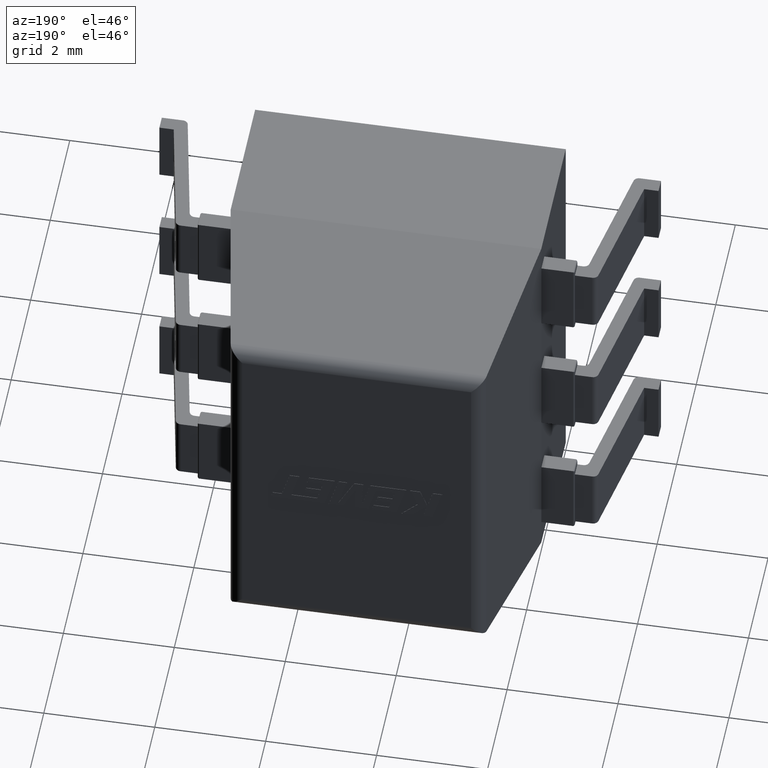
[diagram: clean part render]
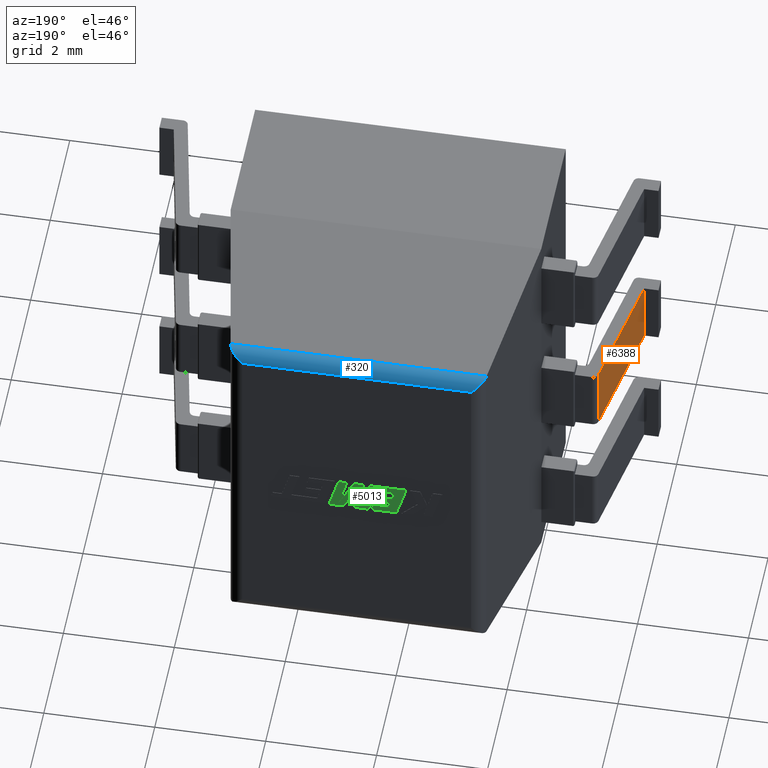
[diagram: same view with three faces highlighted in distinct colors, each labeled with its STEP entity id]
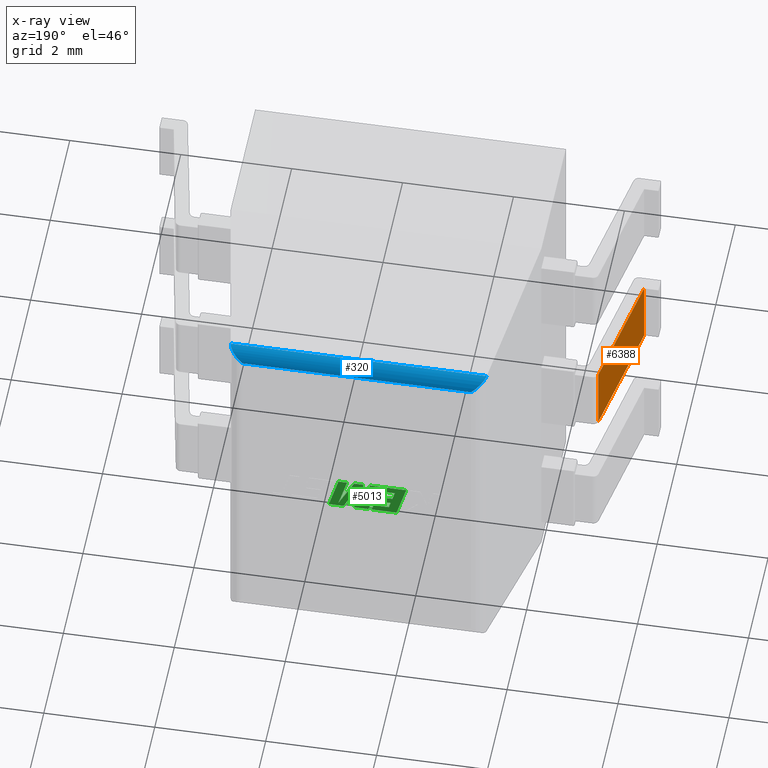
[diagram: x-ray of the same camera — body ghosted, the three highlighted faces saturated]
A machine part, auxiliary view with three faces highlighted in distinct colors.
The next image is the same camera in x-ray (body ghosted, the three faces saturated) — at least one of them is partly hidden behind the body in this view.
Their STEP definitions:

[orange] entity #6388 — the highlighted planar face has unit normal (-0.9819, 0.1894, 0).
#21 = ORIENTED_EDGE ( 'NONE', *, *, #768, .T. ) ;
#187 = CARTESIAN_POINT ( 'NONE',  ( -1.440915913729586800, 0.1499999999999997200, -3.149999999999999500 ) ) ;
#768 = EDGE_CURVE ( 'NONE', #2893, #1430, #2916, .T. ) ;
#974 = VECTOR ( 'NONE', #1299, 1000.000000000000000 ) ;
#1021 = EDGE_CURVE ( 'NONE', #6964, #2893, #2041, .T. ) ;
#1105 = VECTOR ( 'NONE', #4920, 999.9999999999998900 ) ;
#1299 = DIRECTION ( 'NONE',  ( 0.0000000000000000000, 0.0000000000000000000, 1.000000000000000000 ) ) ;
#1430 = VERTEX_POINT ( 'NONE', #3330 ) ;
#1866 = EDGE_LOOP ( 'NONE', ( #5034, #6144, #8525, #21 ) ) ;
#2041 = LINE ( 'NONE', #7977, #974 ) ;
#2200 = CARTESIAN_POINT ( 'NONE',  ( -1.440915913729586800, 0.1499999999999997200, -4.349999999999999600 ) ) ;
#2653 = VERTEX_POINT ( 'NONE', #6819 ) ;
#2776 = EDGE_CURVE ( 'NONE', #6964, #2653, #6210, .T. ) ;
#2893 = VERTEX_POINT ( 'NONE', #5776 ) ;
#2916 = LINE ( 'NONE', #187, #1105 ) ;
#2958 = CARTESIAN_POINT ( 'NONE',  ( -1.440915913729586800, 0.1499999999999997200, -4.349999999999999600 ) ) ;
#3330 = CARTESIAN_POINT ( 'NONE',  ( -1.010126714420510600, 2.383935020691321200, -3.149999999999999500 ) ) ;
#3573 = VECTOR ( 'NONE', #5081, 1000.000000000000000 ) ;
#4038 = PLANE ( 'NONE',  #4569 ) ;
#4212 = VECTOR ( 'NONE', #5644, 999.9999999999998900 ) ;
#4402 = CARTESIAN_POINT ( 'NONE',  ( -1.010126714420510600, 2.383935020691321200, -4.349999999999999600 ) ) ;
#4569 = AXIS2_PLACEMENT_3D ( 'NONE', #2200, #6918, #7551 ) ;
#4920 = DIRECTION ( 'NONE',  ( 0.1893502069138052500, 0.9819096186216423900, 0.0000000000000000000 ) ) ;
#5034 = ORIENTED_EDGE ( 'NONE', *, *, #7256, .F. ) ;
#5081 = DIRECTION ( 'NONE',  ( 0.0000000000000000000, 0.0000000000000000000, 1.000000000000000000 ) ) ;
#5363 = LINE ( 'NONE', #4402, #3573 ) ;
#5644 = DIRECTION ( 'NONE',  ( 0.1893502069138052500, 0.9819096186216423900, 0.0000000000000000000 ) ) ;
#5700 = CARTESIAN_POINT ( 'NONE',  ( -1.440915913729586800, 0.1499999999999997200, -4.349999999999999600 ) ) ;
#5776 = CARTESIAN_POINT ( 'NONE',  ( -1.440915913729586800, 0.1499999999999997200, -3.149999999999999500 ) ) ;
#6144 = ORIENTED_EDGE ( 'NONE', *, *, #2776, .F. ) ;
#6210 = LINE ( 'NONE', #5700, #4212 ) ;
#6388 = ADVANCED_FACE ( 'NONE', ( #8397 ), #4038, .T. ) ;
#6819 = CARTESIAN_POINT ( 'NONE',  ( -1.010126714420510600, 2.383935020691321200, -4.349999999999999600 ) ) ;
#6918 = DIRECTION ( 'NONE',  ( -0.9819096186216423900, 0.1893502069138053000, 0.0000000000000000000 ) ) ;
#6964 = VERTEX_POINT ( 'NONE', #2958 ) ;
#7256 = EDGE_CURVE ( 'NONE', #2653, #1430, #5363, .T. ) ;
#7551 = DIRECTION ( 'NONE',  ( 0.1893502069138053000, 0.9819096186216423900, 0.0000000000000000000 ) ) ;
#7977 = CARTESIAN_POINT ( 'NONE',  ( -1.440915913729586800, 0.1499999999999997200, -4.349999999999999600 ) ) ;
#8397 = FACE_OUTER_BOUND ( 'NONE', #1866, .T. ) ;
#8525 = ORIENTED_EDGE ( 'NONE', *, *, #1021, .T. ) ;

[blue] entity #320 — the highlighted cylindrical surface (edge-blend (fillet) strip) has radius 0.25 mm, axis along (1, 0, 0).
#59 = CARTESIAN_POINT ( 'NONE',  ( 0.5145947842552223200, 5.418412044416731600, -0.5145947842552225400 ) ) ;
#320 = ADVANCED_FACE ( 'NONE', ( #5987 ), #8481, .T. ) ;
#877 = AXIS2_PLACEMENT_3D ( 'NONE', #5359, #3356, #5497 ) ;
#1311 = CARTESIAN_POINT ( 'NONE',  ( 0.6118275234339978200, 5.499999999999999100, -0.6118275234339982700 ) ) ;
#1354 = CARTESIAN_POINT ( 'NONE',  ( 4.988172476566000500, 5.499999999999999100, -0.6118275234339978200 ) ) ;
#1385 = CARTESIAN_POINT ( 'NONE',  ( 5.107446088333335700, 5.293412044416731600, -0.4925539116666643500 ) ) ;
#1480 = ORIENTED_EDGE ( 'NONE', *, *, #3607, .F. ) ;
#1493 = CARTESIAN_POINT ( 'NONE',  ( 0.5289809421253955900, 5.293412044416731600, -0.4925539116666643500 ) ) ;
#2100 = VERTEX_POINT ( 'NONE', #2774 ) ;
#2345 = VECTOR ( 'NONE', #2942, 1000.000000000000000 ) ;
#2718 = CARTESIAN_POINT ( 'NONE',  ( 0.7387558499197165500, 5.500000000000000000, -0.7387558499197165500 ) ) ;
#2774 = CARTESIAN_POINT ( 'NONE',  ( 4.861244150080283400, 5.500000000000000000, -0.7387558499197165500 ) ) ;
#2942 = DIRECTION ( 'NONE',  ( 1.000000000000000000, -0.0000000000000000000, -0.0000000000000000000 ) ) ;
#3187 = EDGE_CURVE ( 'NONE', #3764, #6053, #5107, .T. ) ;
#3356 = DIRECTION ( 'NONE',  ( 1.000000000000000000, 0.0000000000000000000, 0.0000000000000000000 ) ) ;
#3607 = EDGE_CURVE ( 'NONE', #6047, #6053, #6599, .T. ) ;
#3764 = VERTEX_POINT ( 'NONE', #5733 ) ;
#4026 = CARTESIAN_POINT ( 'NONE',  ( 5.071019057874602600, 5.500000000000000000, -0.7387558499197165500 ) ) ;
#4119 =( BOUNDED_CURVE ( )  B_SPLINE_CURVE ( 3, ( #1385, #7485, #1354, #7434 ),
 .UNSPECIFIED., .F., .T. ) 
 B_SPLINE_CURVE_WITH_KNOTS ( ( 4, 4 ),
 ( 3.316125578789223600, 4.712388980384688800 ),
 .UNSPECIFIED. ) 
 CURVE ( )  GEOMETRIC_REPRESENTATION_ITEM ( )  RATIONAL_B_SPLINE_CURVE ( ( 1.000000000000000000, 0.8440296287459849700, 0.8440296287459849700, 1.000000000000000000 ) ) 
 REPRESENTATION_ITEM ( '' )  );
#4134 = LINE ( 'NONE', #4026, #2345 ) ;
#4807 = VECTOR ( 'NONE', #6228, 1000.000000000000000 ) ;
#4941 = ORIENTED_EDGE ( 'NONE', *, *, #3187, .T. ) ;
#5100 = EDGE_CURVE ( 'NONE', #3764, #2100, #4134, .T. ) ;
#5107 =( BOUNDED_CURVE ( )  B_SPLINE_CURVE ( 3, ( #2718, #1311, #59, #8107 ),
 .UNSPECIFIED., .F., .F. ) 
 B_SPLINE_CURVE_WITH_KNOTS ( ( 4, 4 ),
 ( 4.712388980384689700, 6.108652381980155300 ),
 .UNSPECIFIED. ) 
 CURVE ( )  GEOMETRIC_REPRESENTATION_ITEM ( )  RATIONAL_B_SPLINE_CURVE ( ( 1.000000000000000000, 0.8440296287459849700, 0.8440296287459849700, 1.000000000000000000 ) ) 
 REPRESENTATION_ITEM ( '' )  );
#5359 = CARTESIAN_POINT ( 'NONE',  ( 0.0000000000000000000, 5.249999999999999100, -0.7387558499197165500 ) ) ;
#5497 = DIRECTION ( 'NONE',  ( 0.0000000000000000000, 0.0000000000000000000, -1.000000000000000000 ) ) ;
#5733 = CARTESIAN_POINT ( 'NONE',  ( 0.7387558499197165500, 5.500000000000000000, -0.7387558499197165500 ) ) ;
#5987 = FACE_OUTER_BOUND ( 'NONE', #7882, .T. ) ;
#6047 = VERTEX_POINT ( 'NONE', #6392 ) ;
#6053 = VERTEX_POINT ( 'NONE', #6332 ) ;
#6070 = ORIENTED_EDGE ( 'NONE', *, *, #7819, .T. ) ;
#6228 = DIRECTION ( 'NONE',  ( -1.000000000000000000, -0.0000000000000000000, -0.0000000000000000000 ) ) ;
#6332 = CARTESIAN_POINT ( 'NONE',  ( 0.4925539116666644000, 5.293412044416731600, -0.4925539116666644000 ) ) ;
#6392 = CARTESIAN_POINT ( 'NONE',  ( 5.107446088333335700, 5.293412044416731600, -0.4925539116666643500 ) ) ;
#6599 = LINE ( 'NONE', #1493, #4807 ) ;
#7163 = ORIENTED_EDGE ( 'NONE', *, *, #5100, .F. ) ;
#7434 = CARTESIAN_POINT ( 'NONE',  ( 4.861244150080283400, 5.500000000000000000, -0.7387558499197165500 ) ) ;
#7485 = CARTESIAN_POINT ( 'NONE',  ( 5.085405215744776400, 5.418412044416731600, -0.5145947842552224300 ) ) ;
#7819 = EDGE_CURVE ( 'NONE', #6047, #2100, #4119, .T. ) ;
#7882 = EDGE_LOOP ( 'NONE', ( #4941, #1480, #6070, #7163 ) ) ;
#8107 = CARTESIAN_POINT ( 'NONE',  ( 0.4925539116666644000, 5.293412044416731600, -0.4925539116666644000 ) ) ;
#8481 = CYLINDRICAL_SURFACE ( 'NONE', #877, 0.2500000000000001100 ) ;

[green] entity #5013 — the highlighted planar face has unit normal (0, -1, -0).
#4 = LINE ( 'NONE', #1093, #6965 ) ;
#100 = DIRECTION ( 'NONE',  ( -0.2760118818968504400, 0.0000000000000000000, 0.9611542233438705700 ) ) ;
#143 = CARTESIAN_POINT ( 'NONE',  ( 3.126770608996741500, 5.504999999999999900, -3.447353490482363700 ) ) ;
#229 = ORIENTED_EDGE ( 'NONE', *, *, #4556, .T. ) ;
#251 = DIRECTION ( 'NONE',  ( 0.05375259206908306700, 0.0000000000000000000, -0.9985542843760947300 ) ) ;
#356 = EDGE_CURVE ( 'NONE', #3122, #2538, #1018, .T. ) ;
#372 = CARTESIAN_POINT ( 'NONE',  ( 2.681567917805442600, 5.504999999999999900, -3.447353490482364200 ) ) ;
#466 = ORIENTED_EDGE ( 'NONE', *, *, #5731, .T. ) ;
#549 = CARTESIAN_POINT ( 'NONE',  ( 2.526423671517495300, 5.504999999999999900, -4.052198855735402300 ) ) ;
#556 = ORIENTED_EDGE ( 'NONE', *, *, #356, .T. ) ;
#576 = DIRECTION ( 'NONE',  ( -1.000000000000000000, 0.0000000000000000000, 0.0000000000000000000 ) ) ;
#609 = VERTEX_POINT ( 'NONE', #7802 ) ;
#627 = LINE ( 'NONE', #8684, #3505 ) ;
#649 = VECTOR ( 'NONE', #3512, 1000.000000000000000 ) ;
#734 = EDGE_CURVE ( 'NONE', #6391, #3682, #1738, .T. ) ;
#781 = CARTESIAN_POINT ( 'NONE',  ( 2.110681449141495100, 5.504999999999999900, -3.562425688122239800 ) ) ;
#793 = EDGE_CURVE ( 'NONE', #4226, #6873, #995, .T. ) ;
#976 = DIRECTION ( 'NONE',  ( 1.000000000000000000, 0.0000000000000000000, 0.0000000000000000000 ) ) ;
#990 = CARTESIAN_POINT ( 'NONE',  ( 1.905534037723799300, 5.504999999999999900, -3.447353490482364200 ) ) ;
#995 = LINE ( 'NONE', #4326, #6390 ) ;
#1006 = EDGE_CURVE ( 'NONE', #4124, #3122, #6799, .T. ) ;
#1018 = LINE ( 'NONE', #3479, #4418 ) ;
#1039 = CARTESIAN_POINT ( 'NONE',  ( 2.821074975420974500, 5.504999999999999900, -3.620089555489130800 ) ) ;
#1081 = CARTESIAN_POINT ( 'NONE',  ( 2.821074975420974500, 5.504999999999999900, -3.620089555489130800 ) ) ;
#1093 = CARTESIAN_POINT ( 'NONE',  ( 2.586753356212198300, 5.504999999999999900, -4.052198855735402300 ) ) ;
#1095 = VECTOR ( 'NONE', #4133, 1000.000000000000000 ) ;
#1138 = VERTEX_POINT ( 'NONE', #2707 ) ;
#1246 = CARTESIAN_POINT ( 'NONE',  ( 2.079584185442108400, 5.504999999999999900, -4.052198855735402300 ) ) ;
#1276 = ORIENTED_EDGE ( 'NONE', *, *, #4314, .T. ) ;
#1405 = VERTEX_POINT ( 'NONE', #1931 ) ;
#1429 = DIRECTION ( 'NONE',  ( 0.2746459304916960000, 0.0000000000000000000, -0.9615454294334462300 ) ) ;
#1459 = VERTEX_POINT ( 'NONE', #8004 ) ;
#1540 = CARTESIAN_POINT ( 'NONE',  ( 2.842814283034615500, 5.504999999999999900, -3.447353490482364200 ) ) ;
#1561 = LINE ( 'NONE', #5426, #3183 ) ;
#1591 = VERTEX_POINT ( 'NONE', #1540 ) ;
#1732 = VERTEX_POINT ( 'NONE', #3741 ) ;
#1738 = LINE ( 'NONE', #8237, #3757 ) ;
#1753 = EDGE_CURVE ( 'NONE', #4431, #4124, #6985, .T. ) ;
#1766 = EDGE_CURVE ( 'NONE', #6873, #7880, #6773, .T. ) ;
#1780 = EDGE_CURVE ( 'NONE', #1459, #1591, #4656, .T. ) ;
#1791 = ORIENTED_EDGE ( 'NONE', *, *, #2047, .T. ) ;
#1931 = CARTESIAN_POINT ( 'NONE',  ( 2.711751151106718300, 5.504999999999999900, -3.985831420924078800 ) ) ;
#1942 = DIRECTION ( 'NONE',  ( 0.2763139702539097500, 0.0000000000000000000, -0.9610674221107077300 ) ) ;
#2047 = EDGE_CURVE ( 'NONE', #4838, #4226, #8504, .T. ) ;
#2089 = EDGE_CURVE ( 'NONE', #6865, #4431, #1561, .T. ) ;
#2159 = ORIENTED_EDGE ( 'NONE', *, *, #3592, .T. ) ;
#2160 = ORIENTED_EDGE ( 'NONE', *, *, #1780, .T. ) ;
#2173 = CARTESIAN_POINT ( 'NONE',  ( 2.413083901719929300, 5.504999999999999900, -3.712753344107350400 ) ) ;
#2246 = LINE ( 'NONE', #1246, #4258 ) ;
#2266 = VERTEX_POINT ( 'NONE', #3597 ) ;
#2349 = EDGE_CURVE ( 'NONE', #609, #1138, #4, .T. ) ;
#2363 = VECTOR ( 'NONE', #4621, 1000.000000000000200 ) ;
#2410 = DIRECTION ( 'NONE',  ( -0.2762517575166264500, 0.0000000000000000000, 0.9610853065513878000 ) ) ;
#2441 = CARTESIAN_POINT ( 'NONE',  ( 2.153513980435636000, 5.504999999999999900, -3.712753344107350400 ) ) ;
#2460 = ORIENTED_EDGE ( 'NONE', *, *, #2349, .T. ) ;
#2538 = VERTEX_POINT ( 'NONE', #8703 ) ;
#2707 = CARTESIAN_POINT ( 'NONE',  ( 2.445974283412600600, 5.504999999999999900, -3.562425688122239800 ) ) ;
#2730 = VECTOR ( 'NONE', #8334, 1000.000000000000000 ) ;
#2791 = VECTOR ( 'NONE', #576, 1000.000000000000000 ) ;
#2815 = ORIENTED_EDGE ( 'NONE', *, *, #2089, .T. ) ;
#2852 = ORIENTED_EDGE ( 'NONE', *, *, #4033, .T. ) ;
#2977 = VERTEX_POINT ( 'NONE', #1081 ) ;
#3014 = VECTOR ( 'NONE', #1942, 1000.000000000000100 ) ;
#3035 = CARTESIAN_POINT ( 'NONE',  ( 2.079584185442108400, 5.504999999999999900, -4.052198855735402300 ) ) ;
#3122 = VERTEX_POINT ( 'NONE', #5232 ) ;
#3183 = VECTOR ( 'NONE', #100, 1000.000000000000200 ) ;
#3479 = CARTESIAN_POINT ( 'NONE',  ( 3.300668111313172800, 5.504999999999999900, -4.052198855735402300 ) ) ;
#3505 = VECTOR ( 'NONE', #8054, 1000.000000000000000 ) ;
#3510 = DIRECTION ( 'NONE',  ( 0.2793947940877490300, 0.0000000000000000000, -0.9601763114327829300 ) ) ;
#3512 = DIRECTION ( 'NONE',  ( -1.000000000000000000, 0.0000000000000000000, 0.0000000000000000000 ) ) ;
#3518 = VERTEX_POINT ( 'NONE', #2441 ) ;
#3592 = EDGE_CURVE ( 'NONE', #1732, #609, #5858, .T. ) ;
#3597 = CARTESIAN_POINT ( 'NONE',  ( 2.557138402896487900, 5.504999999999999900, -3.447353490482364200 ) ) ;
#3682 = VERTEX_POINT ( 'NONE', #5584 ) ;
#3715 = VERTEX_POINT ( 'NONE', #3035 ) ;
#3741 = CARTESIAN_POINT ( 'NONE',  ( 2.844335598612739400, 5.504999999999999900, -4.052198855735402300 ) ) ;
#3757 = VECTOR ( 'NONE', #1429, 1000.000000000000000 ) ;
#3939 = VECTOR ( 'NONE', #5134, 1000.000000000000100 ) ;
#3974 = DIRECTION ( 'NONE',  ( -0.2765379750249943900, 0.0000000000000000000, 0.9610029908221282600 ) ) ;
#4007 = VECTOR ( 'NONE', #3510, 999.9999999999998900 ) ;
#4012 = CARTESIAN_POINT ( 'NONE',  ( 2.493724555742055300, 5.504999999999999900, -3.937069646140000300 ) ) ;
#4033 = EDGE_CURVE ( 'NONE', #1138, #5342, #5651, .T. ) ;
#4124 = VERTEX_POINT ( 'NONE', #143 ) ;
#4133 = DIRECTION ( 'NONE',  ( -1.000000000000000000, 0.0000000000000000000, 0.0000000000000000000 ) ) ;
#4226 = VERTEX_POINT ( 'NONE', #5695 ) ;
#4258 = VECTOR ( 'NONE', #3974, 1000.000000000000100 ) ;
#4314 = EDGE_CURVE ( 'NONE', #2538, #2977, #6052, .T. ) ;
#4326 = CARTESIAN_POINT ( 'NONE',  ( 2.218150826501031700, 5.504999999999999900, -3.937069646140000300 ) ) ;
#4334 = CARTESIAN_POINT ( 'NONE',  ( 2.844335598612739400, 5.504999999999999900, -4.052198855735402300 ) ) ;
#4369 = CARTESIAN_POINT ( 'NONE',  ( 2.973070052092867200, 5.504999999999999900, -3.447353490482363700 ) ) ;
#4399 = DIRECTION ( 'NONE',  ( 0.2732148821746249200, 0.0000000000000000000, -0.9619530280415492500 ) ) ;
#4418 = VECTOR ( 'NONE', #4824, 1000.000000000000000 ) ;
#4430 = ORIENTED_EDGE ( 'NONE', *, *, #4501, .T. ) ;
#4431 = VERTEX_POINT ( 'NONE', #5225 ) ;
#4501 = EDGE_CURVE ( 'NONE', #1405, #1459, #6149, .T. ) ;
#4502 = EDGE_CURVE ( 'NONE', #7880, #3715, #7103, .T. ) ;
#4556 = EDGE_CURVE ( 'NONE', #3715, #7007, #2246, .T. ) ;
#4599 = EDGE_CURVE ( 'NONE', #2266, #1405, #6570, .T. ) ;
#4620 = EDGE_CURVE ( 'NONE', #3682, #4838, #7703, .T. ) ;
#4621 = DIRECTION ( 'NONE',  ( -0.05596501978068196800, 0.0000000000000000000, 0.9984327301130245800 ) ) ;
#4644 = DIRECTION ( 'NONE',  ( 0.0000000000000000000, 0.0000000000000000000, -1.000000000000000000 ) ) ;
#4656 = LINE ( 'NONE', #372, #8635 ) ;
#4824 = DIRECTION ( 'NONE',  ( -1.000000000000000000, 0.0000000000000000000, 0.0000000000000000000 ) ) ;
#4831 = CARTESIAN_POINT ( 'NONE',  ( 2.110681449141495100, 5.504999999999999900, -3.562425688122239800 ) ) ;
#4838 = VERTEX_POINT ( 'NONE', #8704 ) ;
#4972 = ORIENTED_EDGE ( 'NONE', *, *, #4620, .T. ) ;
#5013 = ADVANCED_FACE ( 'NONE', ( #5611 ), #8622, .F. ) ;
#5026 = CARTESIAN_POINT ( 'NONE',  ( 1.905534037723799300, 5.504999999999999900, -3.447353490482364200 ) ) ;
#5134 = DIRECTION ( 'NONE',  ( -0.4443210308329174600, 0.0000000000000000000, 0.8958676361826971600 ) ) ;
#5225 = CARTESIAN_POINT ( 'NONE',  ( 2.973070052092867200, 5.504999999999999900, -3.447353490482363700 ) ) ;
#5232 = CARTESIAN_POINT ( 'NONE',  ( 3.300668111313172800, 5.504999999999999900, -4.052198855735402300 ) ) ;
#5284 = VECTOR ( 'NONE', #5369, 1000.000000000000100 ) ;
#5307 = CARTESIAN_POINT ( 'NONE',  ( 0.0000000000000000000, 5.504999999999998100, 0.0000000000000000000 ) ) ;
#5309 = LINE ( 'NONE', #1039, #7599 ) ;
#5342 = VERTEX_POINT ( 'NONE', #781 ) ;
#5369 = DIRECTION ( 'NONE',  ( 0.2740217765954041100, 0.0000000000000000000, -0.9617234872620604700 ) ) ;
#5373 = CARTESIAN_POINT ( 'NONE',  ( 2.842814283034615500, 5.504999999999999900, -3.447353490482364200 ) ) ;
#5426 = CARTESIAN_POINT ( 'NONE',  ( 3.128447863979044700, 5.504999999999999900, -3.988424545402167200 ) ) ;
#5505 = DIRECTION ( 'NONE',  ( 0.2759782365590813800, 0.0000000000000000000, -0.9611638845408933000 ) ) ;
#5584 = CARTESIAN_POINT ( 'NONE',  ( 2.445021632009909400, 5.504999999999999900, -3.824568503836204900 ) ) ;
#5585 = CARTESIAN_POINT ( 'NONE',  ( 2.526423671517495300, 5.504999999999999900, -4.052198855735402300 ) ) ;
#5611 = FACE_OUTER_BOUND ( 'NONE', #5818, .T. ) ;
#5627 = AXIS2_PLACEMENT_3D ( 'NONE', #5307, #6650, #4644 ) ;
#5651 = LINE ( 'NONE', #8053, #1095 ) ;
#5695 = CARTESIAN_POINT ( 'NONE',  ( 2.218150826501031700, 5.504999999999999900, -3.937069646140000300 ) ) ;
#5731 = EDGE_CURVE ( 'NONE', #1591, #6865, #7104, .T. ) ;
#5818 = EDGE_LOOP ( 'NONE', ( #556, #1276, #6782, #2159, #2460, #2852, #6673, #7222, #7837, #4972, #1791, #6034, #5841, #6125, #229, #6746, #7907, #4430, #2160, #466, #2815, #6276, #6813 ) ) ;
#5841 = ORIENTED_EDGE ( 'NONE', *, *, #1766, .T. ) ;
#5858 = LINE ( 'NONE', #4334, #8575 ) ;
#6003 = CARTESIAN_POINT ( 'NONE',  ( 2.185414928818134200, 5.504999999999999900, -3.824568503836204900 ) ) ;
#6004 = EDGE_CURVE ( 'NONE', #2977, #1732, #5309, .T. ) ;
#6034 = ORIENTED_EDGE ( 'NONE', *, *, #793, .T. ) ;
#6052 = LINE ( 'NONE', #7166, #3939 ) ;
#6093 = CARTESIAN_POINT ( 'NONE',  ( 2.557138402896487900, 5.504999999999999900, -3.447353490482364200 ) ) ;
#6125 = ORIENTED_EDGE ( 'NONE', *, *, #4502, .T. ) ;
#6149 = LINE ( 'NONE', #7355, #2363 ) ;
#6276 = ORIENTED_EDGE ( 'NONE', *, *, #1753, .T. ) ;
#6334 = LINE ( 'NONE', #4831, #5284 ) ;
#6356 = EDGE_CURVE ( 'NONE', #5342, #3518, #6334, .T. ) ;
#6390 = VECTOR ( 'NONE', #976, 1000.000000000000000 ) ;
#6391 = VERTEX_POINT ( 'NONE', #2173 ) ;
#6420 = CARTESIAN_POINT ( 'NONE',  ( 2.493724555742055300, 5.504999999999999900, -3.937069646140000300 ) ) ;
#6560 = VECTOR ( 'NONE', #4399, 1000.000000000000100 ) ;
#6570 = LINE ( 'NONE', #6093, #7202 ) ;
#6596 = CARTESIAN_POINT ( 'NONE',  ( 3.126770608996741500, 5.504999999999999900, -3.447353490482363700 ) ) ;
#6650 = DIRECTION ( 'NONE',  ( 0.0000000000000000000, -1.000000000000000000, -0.0000000000000000000 ) ) ;
#6673 = ORIENTED_EDGE ( 'NONE', *, *, #6356, .T. ) ;
#6746 = ORIENTED_EDGE ( 'NONE', *, *, #7051, .T. ) ;
#6773 = LINE ( 'NONE', #6420, #6560 ) ;
#6782 = ORIENTED_EDGE ( 'NONE', *, *, #6004, .T. ) ;
#6799 = LINE ( 'NONE', #6596, #3014 ) ;
#6813 = ORIENTED_EDGE ( 'NONE', *, *, #1006, .T. ) ;
#6865 = VERTEX_POINT ( 'NONE', #7996 ) ;
#6873 = VERTEX_POINT ( 'NONE', #4012 ) ;
#6965 = VECTOR ( 'NONE', #2410, 1000.000000000000000 ) ;
#6985 = LINE ( 'NONE', #4369, #8529 ) ;
#7007 = VERTEX_POINT ( 'NONE', #5026 ) ;
#7051 = EDGE_CURVE ( 'NONE', #7007, #2266, #7863, .T. ) ;
#7103 = LINE ( 'NONE', #549, #2791 ) ;
#7104 = LINE ( 'NONE', #5373, #8434 ) ;
#7166 = CARTESIAN_POINT ( 'NONE',  ( 3.035387047833823600, 5.504999999999999900, -4.052198855735402300 ) ) ;
#7202 = VECTOR ( 'NONE', #5505, 1000.000000000000100 ) ;
#7222 = ORIENTED_EDGE ( 'NONE', *, *, #8142, .T. ) ;
#7227 = DIRECTION ( 'NONE',  ( -1.000000000000000000, 0.0000000000000000000, 0.0000000000000000000 ) ) ;
#7355 = CARTESIAN_POINT ( 'NONE',  ( 2.711751151106718300, 5.504999999999999900, -3.985831420924078800 ) ) ;
#7523 = CARTESIAN_POINT ( 'NONE',  ( 2.445021632009909400, 5.504999999999999900, -3.824568503836204900 ) ) ;
#7599 = VECTOR ( 'NONE', #251, 1000.000000000000000 ) ;
#7703 = LINE ( 'NONE', #7523, #649 ) ;
#7802 = CARTESIAN_POINT ( 'NONE',  ( 2.586753356212198300, 5.504999999999999900, -4.052198855735402300 ) ) ;
#7837 = ORIENTED_EDGE ( 'NONE', *, *, #734, .T. ) ;
#7863 = LINE ( 'NONE', #990, #2730 ) ;
#7880 = VERTEX_POINT ( 'NONE', #5585 ) ;
#7907 = ORIENTED_EDGE ( 'NONE', *, *, #4599, .T. ) ;
#7996 = CARTESIAN_POINT ( 'NONE',  ( 3.128447863979044700, 5.504999999999999900, -3.988424545402167200 ) ) ;
#8004 = CARTESIAN_POINT ( 'NONE',  ( 2.681567917805442600, 5.504999999999999900, -3.447353490482364200 ) ) ;
#8021 = DIRECTION ( 'NONE',  ( 0.4668459304955212600, 0.0000000000000000000, -0.8843386665637610300 ) ) ;
#8053 = CARTESIAN_POINT ( 'NONE',  ( 2.445974283412600600, 5.504999999999999900, -3.562425688122239800 ) ) ;
#8054 = DIRECTION ( 'NONE',  ( 1.000000000000000000, 0.0000000000000000000, 0.0000000000000000000 ) ) ;
#8142 = EDGE_CURVE ( 'NONE', #3518, #6391, #627, .T. ) ;
#8237 = CARTESIAN_POINT ( 'NONE',  ( 2.413083901719929300, 5.504999999999999900, -3.712753344107350400 ) ) ;
#8334 = DIRECTION ( 'NONE',  ( 1.000000000000000000, 0.0000000000000000000, 0.0000000000000000000 ) ) ;
#8358 = DIRECTION ( 'NONE',  ( 1.000000000000000000, 0.0000000000000000000, 0.0000000000000000000 ) ) ;
#8415 = DIRECTION ( 'NONE',  ( 1.000000000000000000, 0.0000000000000000000, 0.0000000000000000000 ) ) ;
#8434 = VECTOR ( 'NONE', #8021, 1000.000000000000100 ) ;
#8504 = LINE ( 'NONE', #6003, #4007 ) ;
#8529 = VECTOR ( 'NONE', #8358, 1000.000000000000000 ) ;
#8575 = VECTOR ( 'NONE', #7227, 1000.000000000000000 ) ;
#8622 = PLANE ( 'NONE',  #5627 ) ;
#8635 = VECTOR ( 'NONE', #8415, 1000.000000000000000 ) ;
#8684 = CARTESIAN_POINT ( 'NONE',  ( 2.153513980435636000, 5.504999999999999900, -3.712753344107350400 ) ) ;
#8703 = CARTESIAN_POINT ( 'NONE',  ( 3.035387047833823600, 5.504999999999999900, -4.052198855735402300 ) ) ;
#8704 = CARTESIAN_POINT ( 'NONE',  ( 2.185414928818134200, 5.504999999999999900, -3.824568503836204900 ) ) ;